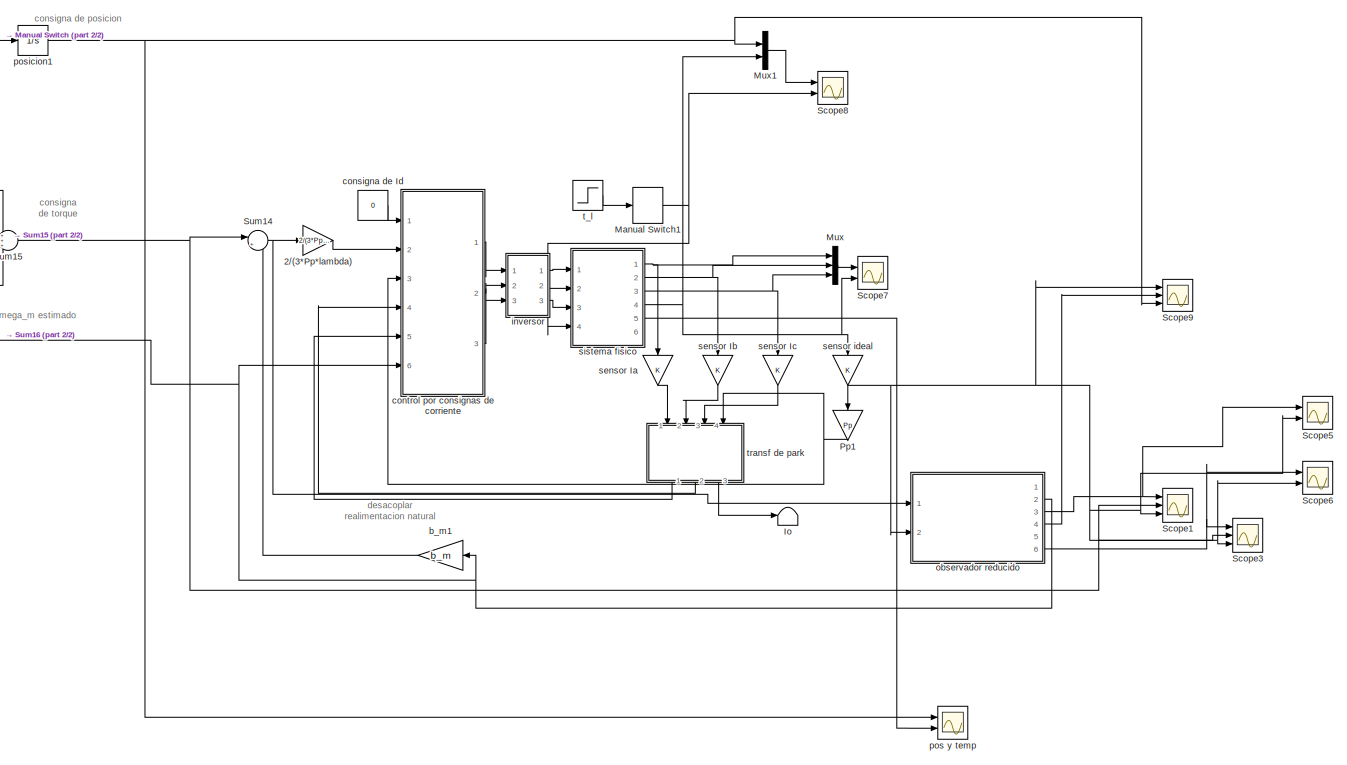
[diagram: root canvas - part 1/2, most of the canvas]
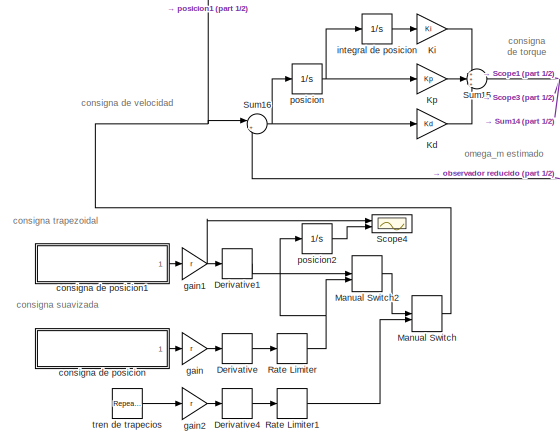
[diagram: root canvas - part 2/2, middle left region]
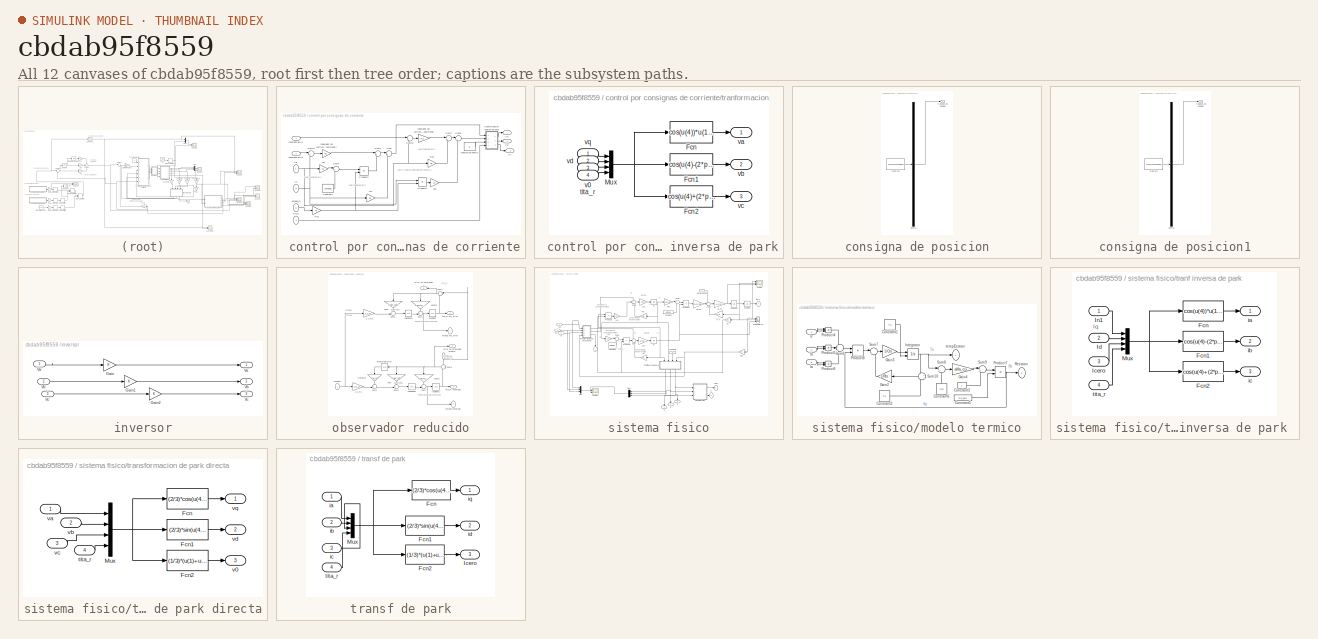
[diagram: thumbnail index - all 12 canvases of the model, root first then tree order]
MODEL slx_cbdab95f8559
KIND model
CONFIG AbsTol = auto
CONFIG EnableMultiTasking = on
CONFIG FixedStep = auto
CONFIG MaxStep = 1e-4
CONFIG MinStep = auto
CONFIG RelTol = 1e-5
CONFIG SampleTimeConstraint = Unconstrained
CONFIG Solver = ode45
CONFIG SolverName = ode45
CONFIG StartTime = 0.0
CONFIG StopTime = 20
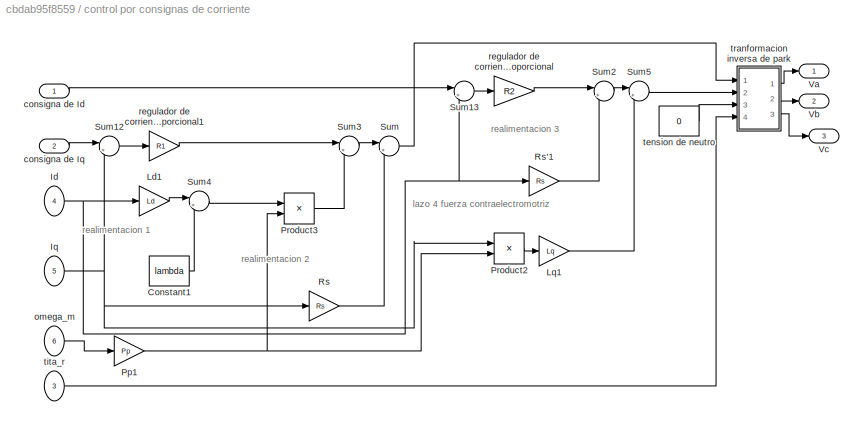
BLOCK [SubSystem]  control por consignas de corriente
  Ports = [6, 3]
  RequestExecContextInheritance = off
  Variant = off
BLOCK [Constant]  control por consignas de corriente/Constant1
  Value = lambda
BLOCK [Inport]  control por consignas de corriente/Id
  IconDisplay = Port number
  Port = 4
BLOCK [Inport]  control por consignas de corriente/Iq
  IconDisplay = Port number
  Port = 5
BLOCK [Gain]  control por consignas de corriente/Ld1
  Gain = Ld
  OutDataTypeStr = Inherit: Inherit via internal rule
  ParamDataTypeStr = Inherit: Inherit via internal rule
  SaturateOnIntegerOverflow = off
BLOCK [Gain]  control por consignas de corriente/Lq1
  Gain = Lq
  OutDataTypeStr = Inherit: Inherit via internal rule
  ParamDataTypeStr = Inherit: Inherit via internal rule
  SaturateOnIntegerOverflow = off
BLOCK [Gain]  control por consignas de corriente/Pp1
  Gain = Pp
  OutDataTypeStr = Inherit: Inherit via internal rule
  ParamDataTypeStr = Inherit: Inherit via internal rule
  SaturateOnIntegerOverflow = off
BLOCK [Product]  control por consignas de corriente/Product2
  InputSameDT = off
  OutDataTypeStr = Inherit: Inherit via internal rule
  Ports = [2, 1]
  SaturateOnIntegerOverflow = off
BLOCK [Product]  control por consignas de corriente/Product3
  InputSameDT = off
  OutDataTypeStr = Inherit: Inherit via internal rule
  Ports = [2, 1]
  SaturateOnIntegerOverflow = off
BLOCK [Gain]  control por consignas de corriente/Rs
  Gain = Rs
  OutDataTypeStr = Inherit: Inherit via internal rule
  ParamDataTypeStr = Inherit: Inherit via internal rule
  SaturateOnIntegerOverflow = off
BLOCK [Gain]  control por consignas de corriente/Rs'1
  Gain = Rs
  OutDataTypeStr = Inherit: Inherit via internal rule
  ParamDataTypeStr = Inherit: Inherit via internal rule
  SaturateOnIntegerOverflow = off
BLOCK [Sum]  control por consignas de corriente/Sum
  IconShape = round
  InputSameDT = off
  Inputs = |++
  OutDataTypeStr = Inherit: Inherit via internal rule
  Ports = [2, 1]
  SaturateOnIntegerOverflow = off
BLOCK [Sum]  control por consignas de corriente/Sum12
  IconShape = round
  InputSameDT = off
  Inputs = |+-
  OutDataTypeStr = Inherit: Inherit via internal rule
  Ports = [2, 1]
  SaturateOnIntegerOverflow = off
BLOCK [Sum]  control por consignas de corriente/Sum13
  IconShape = round
  InputSameDT = off
  Inputs = |+-
  OutDataTypeStr = Inherit: Inherit via internal rule
  Ports = [2, 1]
  SaturateOnIntegerOverflow = off
BLOCK [Sum]  control por consignas de corriente/Sum2
  IconShape = round
  InputSameDT = off
  Inputs = |++
  OutDataTypeStr = Inherit: Inherit via internal rule
  Ports = [2, 1]
  SaturateOnIntegerOverflow = off
BLOCK [Sum]  control por consignas de corriente/Sum3
  IconShape = round
  InputSameDT = off
  Inputs = |++
  OutDataTypeStr = Inherit: Inherit via internal rule
  Ports = [2, 1]
  SaturateOnIntegerOverflow = off
BLOCK [Sum]  control por consignas de corriente/Sum4
  IconShape = round
  InputSameDT = off
  Inputs = |++
  OutDataTypeStr = Inherit: Inherit via internal rule
  Ports = [2, 1]
  SaturateOnIntegerOverflow = off
BLOCK [Sum]  control por consignas de corriente/Sum5
  IconShape = round
  InputSameDT = off
  Inputs = |+-
  OutDataTypeStr = Inherit: Inherit via internal rule
  Ports = [2, 1]
  SaturateOnIntegerOverflow = off
BLOCK [Outport]  control por consignas de corriente/Va
  IconDisplay = Port number
BLOCK [Outport]  control por consignas de corriente/Vb
  IconDisplay = Port number
  Port = 2
BLOCK [Outport]  control por consignas de corriente/Vc
  IconDisplay = Port number
  Port = 3
BLOCK [Inport]  control por consignas de corriente/consigna de Id
  IconDisplay = Port number
BLOCK [Inport]  control por consignas de corriente/consigna de Iq
  IconDisplay = Port number
  Port = 2
BLOCK [Inport]  control por consignas de corriente/omega_m
  IconDisplay = Port number
  Port = 6
BLOCK [Gain]  control por consignas de corriente/regulador de corriente ganacia proporcional
  Gain = R2
  OutDataTypeStr = Inherit: Inherit via internal rule
  ParamDataTypeStr = Inherit: Inherit via internal rule
  SaturateOnIntegerOverflow = off
BLOCK [Gain]  control por consignas de corriente/regulador de corriente ganacia proporcional1
  Gain = R1
  OutDataTypeStr = Inherit: Inherit via internal rule
  ParamDataTypeStr = Inherit: Inherit via internal rule
  SaturateOnIntegerOverflow = off
BLOCK [Constant]  control por consignas de corriente/tension de neutro
  Value = 0
BLOCK [Inport]  control por consignas de corriente/tita_r
  IconDisplay = Port number
  Port = 3
BLOCK [SubSystem]  control por consignas de corriente/tranformacion inversa de park
  Ports = [4, 3]
  RequestExecContextInheritance = off
  Variant = off
BLOCK [Fcn]  control por consignas de corriente/tranformacion inversa de park/Fcn
  Expr = cos(u(4))*u(1)+sin(u(4))*u(2)+u(3)
BLOCK [Fcn]  control por consignas de corriente/tranformacion inversa de park/Fcn1
  Expr = cos(u(4)-(2*pi/3))*u(1)+sin(u(4)-(2*pi/3))*u(2)+u(3)
BLOCK [Fcn]  control por consignas de corriente/tranformacion inversa de park/Fcn2
  Expr = cos(u(4)+(2*pi/3))*u(1)+sin(u(4)+(2*pi/3))*u(2)+u(3)
BLOCK [Mux]  control por consignas de corriente/tranformacion inversa de park/Mux
  DisplayOption = bar
  Ports = [4, 1]
BLOCK [Inport]  control por consignas de corriente/tranformacion inversa de park/tita_r
  IconDisplay = Port number
  Port = 4
BLOCK [Inport]  control por consignas de corriente/tranformacion inversa de park/v0
  IconDisplay = Port number
  Port = 3
BLOCK [Outport]  control por consignas de corriente/tranformacion inversa de park/va
  IconDisplay = Port number
BLOCK [Outport]  control por consignas de corriente/tranformacion inversa de park/vb
  IconDisplay = Port number
  Port = 2
BLOCK [Outport]  control por consignas de corriente/tranformacion inversa de park/vc
  IconDisplay = Port number
  Port = 3
BLOCK [Inport]  control por consignas de corriente/tranformacion inversa de park/vd
  IconDisplay = Port number
  Port = 2
BLOCK [Inport]  control por consignas de corriente/tranformacion inversa de park/vq
  IconDisplay = Port number
BLOCK [Scope]  pos y temp
  NumInputPorts = 2
  Ports = [2]
  ScopeSpecificationString = Simulink.scopes.TimeScopeBlockCfg('CurrentConfiguration', extmgr.ConfigurationSet(extmgr.Configuration('Core','General UI',true),extmgr.Configuration('Core','Source UI',true),extmgr.Configuration('Sources','WiredSimulink',true,'DataLoggingVariableName','ScopeData2'),extmgr.Configuration('Visuals','Time Domain',true,'SerializedDisplays',{struct('MinYLimReal','-246.88788','MaxYLimReal','2221.66551',...<+2269ch>
BLOCK [Gain] 2//(3*Pp*lambda)
  Gain = 2/(3*Pp*lambda)
  OutDataTypeStr = Inherit: Inherit via internal rule
  ParamDataTypeStr = Inherit: Inherit via internal rule
  SaturateOnIntegerOverflow = off
BLOCK [Derivative] Derivative
BLOCK [Derivative] Derivative1
BLOCK [Derivative] Derivative4
BLOCK [Terminator] Io
BLOCK [Gain] Kd
  Gain = Kd
  OutDataTypeStr = Inherit: Inherit via internal rule
  ParamDataTypeStr = Inherit: Inherit via internal rule
  SaturateOnIntegerOverflow = off
BLOCK [Gain] Ki
  Gain = Ki
  OutDataTypeStr = Inherit: Inherit via internal rule
  ParamDataTypeStr = Inherit: Inherit via internal rule
  SaturateOnIntegerOverflow = off
BLOCK [Gain] Kp
  Gain = Kp
  OutDataTypeStr = Inherit: Inherit via internal rule
  ParamDataTypeStr = Inherit: Inherit via internal rule
  SaturateOnIntegerOverflow = off
BLOCK [ManualSwitch] Manual Switch
BLOCK [ManualSwitch] Manual Switch1
BLOCK [ManualSwitch] Manual Switch2
BLOCK [Mux] Mux
  DisplayOption = bar
  Inputs = 3
  Ports = [3, 1]
BLOCK [Mux] Mux1
  DisplayOption = bar
  Inputs = 2
  Ports = [2, 1]
BLOCK [Gain] Pp1
  Gain = Pp
  OutDataTypeStr = Inherit: Inherit via internal rule
  ParamDataTypeStr = Inherit: Inherit via internal rule
  SaturateOnIntegerOverflow = off
BLOCK [RateLimiter] Rate Limiter
  FallingSlewLimit = -16562
  RisingSlewLimit = 16562
  SampleTimeMode = inherited
BLOCK [RateLimiter] Rate Limiter1
  FallingSlewLimit = -16562
  RisingSlewLimit = 16562
  SampleTimeMode = inherited
BLOCK [Scope] Scope1
  NumInputPorts = 3
  Ports = [3]
  ScopeSpecificationString = Simulink.scopes.TimeScopeBlockCfg('CurrentConfiguration', extmgr.ConfigurationSet(extmgr.Configuration('Core','General UI',true),extmgr.Configuration('Core','Source UI',true),extmgr.Configuration('Sources','WiredSimulink',true,'DataLoggingVariableName','ScopeData2'),extmgr.Configuration('Visuals','Time Domain',true,'SerializedDisplays',{struct('MinYLimReal','-0.0002','MaxYLimReal','0.0002','YLabel...<+2771ch>
BLOCK [Scope] Scope3
  NumInputPorts = 3
  Ports = [3]
  ScopeSpecificationString = Simulink.scopes.TimeScopeBlockCfg('CurrentConfiguration', extmgr.ConfigurationSet(extmgr.Configuration('Core','General UI',true),extmgr.Configuration('Core','Source UI',true),extmgr.Configuration('Sources','WiredSimulink',true,'DataLoggingVariableName','ScopeData4'),extmgr.Configuration('Visuals','Time Domain',true,'SerializedDisplays',{struct('MinYLimReal','-0.00027','MaxYLimReal','0.0002','YLabe...<+2971ch>
BLOCK [Scope] Scope4
  NumInputPorts = 2
  Ports = [2]
  ScopeSpecificationString = Simulink.scopes.TimeScopeBlockCfg('CurrentConfiguration', extmgr.ConfigurationSet(extmgr.Configuration('Core','General UI',true),extmgr.Configuration('Core','Source UI',true),extmgr.Configuration('Sources','WiredSimulink',true,'DataLoggingVariableName','ScopeData3'),extmgr.Configuration('Visuals','Time Domain',true,'SerializedDisplays',{struct('MinYLimReal','-40.78035','MaxYLimReal','93.70804','YL...<+1492ch>
BLOCK [Scope] Scope5
  NumInputPorts = 2
  Ports = [2]
  ScopeSpecificationString = Simulink.scopes.TimeScopeBlockCfg('CurrentConfiguration', extmgr.ConfigurationSet(extmgr.Configuration('Core','General UI',true),extmgr.Configuration('Core','Source UI',true),extmgr.Configuration('Sources','WiredSimulink',true,'DataLoggingVariableName','ScopeData6'),extmgr.Configuration('Visuals','Time Domain',true,'SerializedDisplays',{struct('MinYLimReal','-0.01233','MaxYLimReal','0.01234','YLab...<+2057ch>
BLOCK [Scope] Scope6
  NumInputPorts = 2
  Ports = [2]
  ScopeSpecificationString = Simulink.scopes.TimeScopeBlockCfg('CurrentConfiguration', extmgr.ConfigurationSet(extmgr.Configuration('Core','General UI',true),extmgr.Configuration('Core','Source UI',true),extmgr.Configuration('Sources','WiredSimulink',true,'DataLoggingVariableName','ScopeData7'),extmgr.Configuration('Visuals','Time Domain',true,'SerializedDisplays',{struct('MinYLimReal','-0.0114','MaxYLimReal','0.01141','YLabe...<+2055ch>
BLOCK [Scope] Scope7
  NumInputPorts = 2
  Ports = [2]
  ScopeSpecificationString = Simulink.scopes.TimeScopeBlockCfg('CurrentConfiguration', extmgr.ConfigurationSet(extmgr.Configuration('Core','General UI',true),extmgr.Configuration('Core','Source UI',true),extmgr.Configuration('Sources','WiredSimulink',true,'DataLoggingVariableName','ScopeData8'),extmgr.Configuration('Visuals','Time Domain',true,'SerializedDisplays',{struct('MinYLimReal','-38.78101','MaxYLimReal','55.50284','YL...<+2116ch>
BLOCK [Scope] Scope8
  NumInputPorts = 2
  Ports = [2]
  ScopeSpecificationString = Simulink.scopes.TimeScopeBlockCfg('CurrentConfiguration', extmgr.ConfigurationSet(extmgr.Configuration('Core','General UI',true),extmgr.Configuration('Core','Source UI',true),extmgr.Configuration('Sources','WiredSimulink',true,'DataLoggingVariableName','ScopeData1'),extmgr.Configuration('Visuals','Time Domain',true,'SerializedDisplays',{struct('MinYLimReal','-247.06914','MaxYLimReal','2221.87937',...<+2098ch>
BLOCK [Scope] Scope9
  NumInputPorts = 3
  Ports = [3]
  ScopeSpecificationString = Simulink.scopes.TimeScopeBlockCfg('CurrentConfiguration', extmgr.ConfigurationSet(extmgr.Configuration('Core','General UI',true),extmgr.Configuration('Core','Source UI',true),extmgr.Configuration('Sources','WiredSimulink',true,'DataLoggingVariableName','ScopeData4'),extmgr.Configuration('Visuals','Time Domain',true,'SerializedDisplays',{struct('MinYLimReal','-0.000021','MaxYLimReal','0.000041','YL...<+1862ch>
BLOCK [Sum] Sum14
  IconShape = round
  InputSameDT = off
  Inputs = |++
  OutDataTypeStr = Inherit: Inherit via internal rule
  Ports = [2, 1]
  SaturateOnIntegerOverflow = off
BLOCK [Sum] Sum15
  IconShape = round
  InputSameDT = off
  Inputs = +++
  OutDataTypeStr = Inherit: Inherit via internal rule
  Ports = [3, 1]
  SaturateOnIntegerOverflow = off
BLOCK [Sum] Sum16
  IconShape = round
  InputSameDT = off
  Inputs = |+-
  OutDataTypeStr = Inherit: Inherit via internal rule
  Ports = [2, 1]
  SaturateOnIntegerOverflow = off
BLOCK [Gain] b_m1
  Gain = b_m
  OutDataTypeStr = Inherit: Inherit via internal rule
  ParamDataTypeStr = Inherit: Inherit via internal rule
  SaturateOnIntegerOverflow = off
BLOCK [Constant] consigna de Id
  Value = 0
BLOCK [SubSystem] consigna de posicion
  ClipboardFcn = sigbuilder_block('clipboard');
  CloseFcn = sigbuilder_block('close');
  ContinueFcn = sigbuilder_block('continue');
  CopyFcn = sigbuilder_block('copy');
  DeleteFcn = sigbuilder_block('delete');
  LoadFcn = sigbuilder_block('load');
  MaskHideContents = on
  ModelCloseFcn = sigbuilder_block('modelClose');
  NameChangeFcn = sigbuilder_block('namechange');
  OpenFcn = sigbuilder_block('open',[5.58621 27.931 836.69 391.034 ]);
  PauseFcn = sigbuilder_block('pause');
  Ports = [0, 1]
  PreSaveFcn = sigbuilder_block('preSave');
  RequestExecContextInheritance = off
  StartFcn = sigbuilder_block('start');
  StopFcn = sigbuilder_block('stop');
  Tag = STV Subsys
  Variant = off
BLOCK [Demux] consigna de posicion/Demux
  Outputs = 1
  Ports = [1, 1]
  Tag = STV Demux
BLOCK [FromWorkspace] consigna de posicion/FromWs
  SampleTime = 0
  Tag = STV FromWs
  VariableName = tuvar
  ZeroCross = on
BLOCK [Outport] consigna de posicion/trapecio de posicion
  IconDisplay = Port number
  Tag = STV Outport
BLOCK [SubSystem] consigna de posicion1
  ClipboardFcn = sigbuilder_block('clipboard');
  CloseFcn = sigbuilder_block('close');
  ContinueFcn = sigbuilder_block('continue');
  CopyFcn = sigbuilder_block('copy');
  DeleteFcn = sigbuilder_block('delete');
  LoadFcn = sigbuilder_block('load');
  MaskHideContents = on
  ModelCloseFcn = sigbuilder_block('modelClose');
  NameChangeFcn = sigbuilder_block('namechange');
  OpenFcn = sigbuilder_block('open',[5.58621 27.931 836.69 391.034 ]);
  PauseFcn = sigbuilder_block('pause');
  Ports = [0, 1]
  PreSaveFcn = sigbuilder_block('preSave');
  RequestExecContextInheritance = off
  StartFcn = sigbuilder_block('start');
  StopFcn = sigbuilder_block('stop');
  Tag = STV Subsys
  Variant = off
BLOCK [Demux] consigna de posicion1/Demux
  Outputs = 1
  Ports = [1, 1]
  Tag = STV Demux
BLOCK [FromWorkspace] consigna de posicion1/FromWs
  SampleTime = 0
  Tag = STV FromWs
  VariableName = tuvar
  ZeroCross = on
BLOCK [Outport] consigna de posicion1/trapecio de posicion
  IconDisplay = Port number
  Tag = STV Outport
BLOCK [Gain] gain
  Gain = r
  OutDataTypeStr = Inherit: Inherit via internal rule
  ParamDataTypeStr = Inherit: Inherit via internal rule
  SaturateOnIntegerOverflow = off
BLOCK [Gain] gain1
  Gain = r
  OutDataTypeStr = Inherit: Inherit via internal rule
  ParamDataTypeStr = Inherit: Inherit via internal rule
  SaturateOnIntegerOverflow = off
BLOCK [Gain] gain2
  Gain = r
  OutDataTypeStr = Inherit: Inherit via internal rule
  ParamDataTypeStr = Inherit: Inherit via internal rule
  SaturateOnIntegerOverflow = off
BLOCK [Integrator] integral de posicion
  Ports = [1, 1]
BLOCK [SubSystem] inversor
  Ports = [3, 3]
  RequestExecContextInheritance = off
  Variant = off
BLOCK [Gain] inversor/Gain
  OutDataTypeStr = Inherit: Inherit via internal rule
  ParamDataTypeStr = Inherit: Inherit via internal rule
  SaturateOnIntegerOverflow = off
BLOCK [Gain] inversor/Gain1
  OutDataTypeStr = Inherit: Inherit via internal rule
  ParamDataTypeStr = Inherit: Inherit via internal rule
  SaturateOnIntegerOverflow = off
BLOCK [Gain] inversor/Gain2
  OutDataTypeStr = Inherit: Inherit via internal rule
  ParamDataTypeStr = Inherit: Inherit via internal rule
  SaturateOnIntegerOverflow = off
BLOCK [Outport] inversor/Va
  IconDisplay = Port number
BLOCK [Inport] inversor/Va'
  IconDisplay = Port number
BLOCK [Outport] inversor/Vb
  IconDisplay = Port number
  Port = 2
BLOCK [Inport] inversor/Vb'
  IconDisplay = Port number
  Port = 2
BLOCK [Outport] inversor/Vc
  IconDisplay = Port number
  Port = 3
BLOCK [Inport] inversor/Vc'
  IconDisplay = Port number
  Port = 3
BLOCK [SubSystem] observador reducido
  Ports = [2, 6]
  RequestExecContextInheritance = off
  Variant = off
BLOCK [Gain] observador reducido/1//J_m1
  Gain = 1/J_m
  OutDataTypeStr = Inherit: Inherit via internal rule
  ParamDataTypeStr = Inherit: Inherit via internal rule
  SaturateOnIntegerOverflow = off
BLOCK [Gain] observador reducido/1//J_m2
  Gain = 1/J_m
  OutDataTypeStr = Inherit: Inherit via internal rule
  ParamDataTypeStr = Inherit: Inherit via internal rule
  SaturateOnIntegerOverflow = off
BLOCK [Gain] observador reducido/Ketita
  Gain = Ketita_corr
  OutDataTypeStr = Inherit: Inherit via internal rule
  ParamDataTypeStr = Inherit: Inherit via internal rule
  SaturateOnIntegerOverflow = off
BLOCK [Gain] observador reducido/Ketita1
  Gain = Ketita_corr
  OutDataTypeStr = Inherit: Inherit via internal rule
  ParamDataTypeStr = Inherit: Inherit via internal rule
  SaturateOnIntegerOverflow = off
BLOCK [Gain] observador reducido/Kew
  Gain = Kew_corr
  OutDataTypeStr = Inherit: Inherit via internal rule
  ParamDataTypeStr = Inherit: Inherit via internal rule
  SaturateOnIntegerOverflow = off
BLOCK [Gain] observador reducido/Kew1
  Gain = Kew_corr
  OutDataTypeStr = Inherit: Inherit via internal rule
  ParamDataTypeStr = Inherit: Inherit via internal rule
  SaturateOnIntegerOverflow = off
BLOCK [Sum] observador reducido/Sum1
  IconShape = round
  InputSameDT = off
  Inputs = ++|
  OutDataTypeStr = Inherit: Inherit via internal rule
  Ports = [2, 1]
  SaturateOnIntegerOverflow = off
BLOCK [Sum] observador reducido/Sum3
  IconShape = round
  InputSameDT = off
  Inputs = +-
  OutDataTypeStr = Inherit: Inherit via internal rule
  Ports = [2, 1]
  SaturateOnIntegerOverflow = off
BLOCK [Sum] observador reducido/Sum4
  IconShape = round
  InputSameDT = off
  Inputs = ++|
  OutDataTypeStr = Inherit: Inherit via internal rule
  Ports = [2, 1]
  SaturateOnIntegerOverflow = off
BLOCK [Sum] observador reducido/Sum5
  IconShape = round
  InputSameDT = off
  Inputs = ++|
  OutDataTypeStr = Inherit: Inherit via internal rule
  Ports = [2, 1]
  SaturateOnIntegerOverflow = off
BLOCK [Sum] observador reducido/Sum6
  IconShape = round
  InputSameDT = off
  Inputs = +-
  OutDataTypeStr = Inherit: Inherit via internal rule
  Ports = [2, 1]
  SaturateOnIntegerOverflow = off
BLOCK [Sum] observador reducido/Sum7
  IconShape = round
  InputSameDT = off
  Inputs = ++|
  OutDataTypeStr = Inherit: Inherit via internal rule
  Ports = [2, 1]
  SaturateOnIntegerOverflow = off
BLOCK [Sum] observador reducido/Sum8
  IconShape = round
  InputSameDT = off
  Inputs = ++|
  OutDataTypeStr = Inherit: Inherit via internal rule
  Ports = [2, 1]
  SaturateOnIntegerOverflow = off
BLOCK [Inport] observador reducido/consigna
  IconDisplay = Port number
BLOCK [Outport] observador reducido/error de estimacion integral
  IconDisplay = Port number
  Port = 3
BLOCK [Outport] observador reducido/error de estimacion1
  IconDisplay = Port number
  Port = 6
BLOCK [Integrator] observador reducido/integral del error
  Ports = [1, 1]
BLOCK [Gain] observador reducido/k integral
  Gain = Ke_int
  OutDataTypeStr = Inherit: Inherit via internal rule
  ParamDataTypeStr = Inherit: Inherit via internal rule
  SaturateOnIntegerOverflow = off
BLOCK [Outport] observador reducido/omega est_error
  IconDisplay = Port number
  Port = 5
BLOCK [Outport] observador reducido/omega estimado
  IconDisplay = Port number
  Port = 2
BLOCK [Integrator] observador reducido/posicion1
  Ports = [1, 1]
BLOCK [Integrator] observador reducido/posicion2
  Ports = [1, 1]
BLOCK [Inport] observador reducido/tita_m
  IconDisplay = Port number
  Port = 2
BLOCK [Outport] observador reducido/tita_m est_error
  IconDisplay = Port number
  Port = 4
BLOCK [Outport] observador reducido/tita_m estimado
  IconDisplay = Port number
BLOCK [Integrator] observador reducido/velocidad1
  Ports = [1, 1]
BLOCK [Integrator] observador reducido/velocidad2
  Ports = [1, 1]
BLOCK [Integrator] posicion
  Ports = [1, 1]
BLOCK [Integrator] posicion1
  Ports = [1, 1]
BLOCK [Integrator] posicion2
  Ports = [1, 1]
BLOCK [Gain] sensor Ia
  OutDataTypeStr = Inherit: Inherit via internal rule
  ParamDataTypeStr = Inherit: Inherit via internal rule
  SaturateOnIntegerOverflow = off
BLOCK [Gain] sensor Ib
  OutDataTypeStr = Inherit: Inherit via internal rule
  ParamDataTypeStr = Inherit: Inherit via internal rule
  SaturateOnIntegerOverflow = off
BLOCK [Gain] sensor Ic
  OutDataTypeStr = Inherit: Inherit via internal rule
  ParamDataTypeStr = Inherit: Inherit via internal rule
  SaturateOnIntegerOverflow = off
BLOCK [Gain] sensor ideal
  OutDataTypeStr = Inherit: Inherit via internal rule
  ParamDataTypeStr = Inherit: Inherit via internal rule
  SaturateOnIntegerOverflow = off
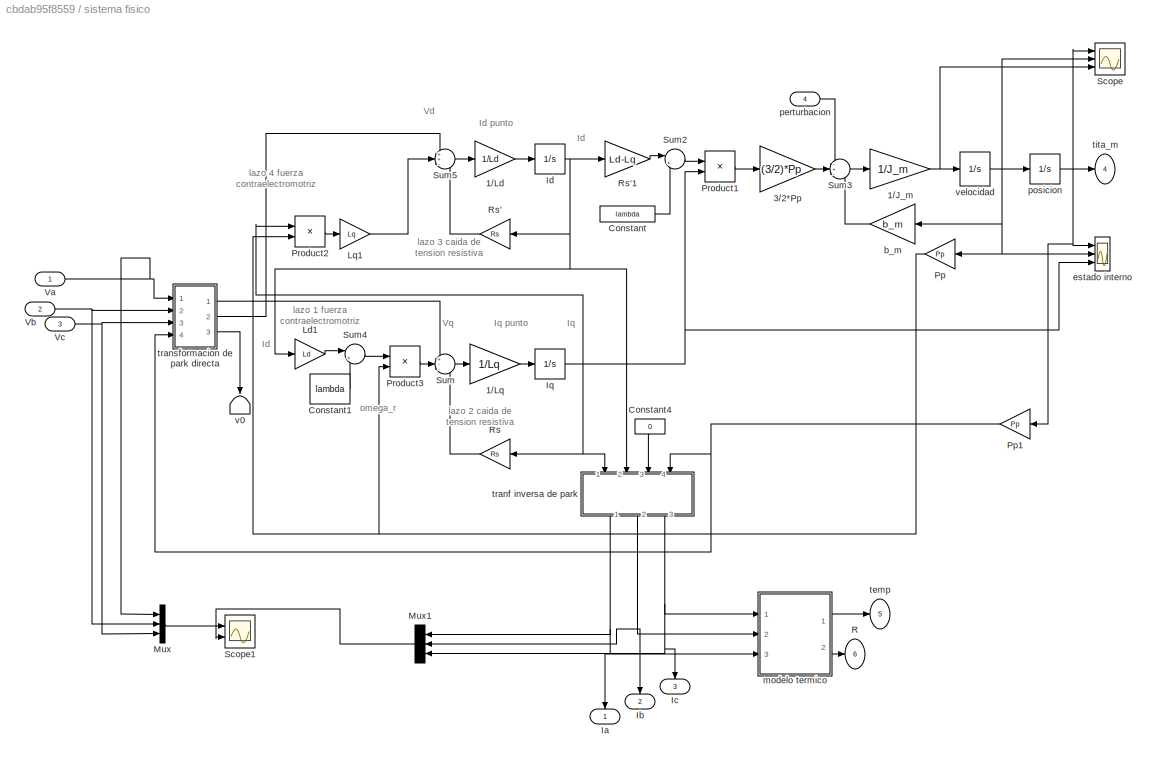
BLOCK [SubSystem] sistema fisico
  Ports = [4, 6]
  RequestExecContextInheritance = off
  Variant = off
BLOCK [Gain] sistema fisico/1//J_m
  Gain = 1/J_m
  OutDataTypeStr = Inherit: Inherit via internal rule
  ParamDataTypeStr = Inherit: Inherit via internal rule
  SaturateOnIntegerOverflow = off
BLOCK [Gain] sistema fisico/1//Ld
  Gain = 1/Ld
  OutDataTypeStr = Inherit: Inherit via internal rule
  ParamDataTypeStr = Inherit: Inherit via internal rule
  SaturateOnIntegerOverflow = off
BLOCK [Gain] sistema fisico/1//Lq
  Gain = 1/Lq
  OutDataTypeStr = Inherit: Inherit via internal rule
  ParamDataTypeStr = Inherit: Inherit via internal rule
  SaturateOnIntegerOverflow = off
BLOCK [Gain] sistema fisico/3//2*Pp
  Gain = (3/2)*Pp
  OutDataTypeStr = Inherit: Inherit via internal rule
  ParamDataTypeStr = Inherit: Inherit via internal rule
  SaturateOnIntegerOverflow = off
BLOCK [Constant] sistema fisico/Constant
  Value = lambda
BLOCK [Constant] sistema fisico/Constant1
  Value = lambda
BLOCK [Constant] sistema fisico/Constant4
  Value = 0
BLOCK [Outport] sistema fisico/Ia
  IconDisplay = Port number
BLOCK [Outport] sistema fisico/Ib
  IconDisplay = Port number
  Port = 2
BLOCK [Outport] sistema fisico/Ic
  IconDisplay = Port number
  Port = 3
BLOCK [Integrator] sistema fisico/Id
  Ports = [1, 1]
BLOCK [Integrator] sistema fisico/Iq
  Ports = [1, 1]
BLOCK [Gain] sistema fisico/Ld1
  Gain = Ld
  OutDataTypeStr = Inherit: Inherit via internal rule
  ParamDataTypeStr = Inherit: Inherit via internal rule
  SaturateOnIntegerOverflow = off
BLOCK [Gain] sistema fisico/Lq1
  Gain = Lq
  OutDataTypeStr = Inherit: Inherit via internal rule
  ParamDataTypeStr = Inherit: Inherit via internal rule
  SaturateOnIntegerOverflow = off
BLOCK [Mux] sistema fisico/Mux
  DisplayOption = bar
  Inputs = 3
  Ports = [3, 1]
BLOCK [Mux] sistema fisico/Mux1
  DisplayOption = bar
  Inputs = 3
  Ports = [3, 1]
BLOCK [Gain] sistema fisico/Pp
  Gain = Pp
  OutDataTypeStr = Inherit: Inherit via internal rule
  ParamDataTypeStr = Inherit: Inherit via internal rule
  SaturateOnIntegerOverflow = off
BLOCK [Gain] sistema fisico/Pp1
  Gain = Pp
  OutDataTypeStr = Inherit: Inherit via internal rule
  ParamDataTypeStr = Inherit: Inherit via internal rule
  SaturateOnIntegerOverflow = off
BLOCK [Product] sistema fisico/Product1
  InputSameDT = off
  OutDataTypeStr = Inherit: Inherit via internal rule
  Ports = [2, 1]
  SaturateOnIntegerOverflow = off
BLOCK [Product] sistema fisico/Product2
  InputSameDT = off
  OutDataTypeStr = Inherit: Inherit via internal rule
  Ports = [2, 1]
  SaturateOnIntegerOverflow = off
BLOCK [Product] sistema fisico/Product3
  InputSameDT = off
  OutDataTypeStr = Inherit: Inherit via internal rule
  Ports = [2, 1]
  SaturateOnIntegerOverflow = off
BLOCK [Outport] sistema fisico/R
  IconDisplay = Port number
  Port = 6
BLOCK [Gain] sistema fisico/Rs
  Gain = Rs
  OutDataTypeStr = Inherit: Inherit via internal rule
  ParamDataTypeStr = Inherit: Inherit via internal rule
  SaturateOnIntegerOverflow = off
BLOCK [Gain] sistema fisico/Rs'
  Gain = Rs
  OutDataTypeStr = Inherit: Inherit via internal rule
  ParamDataTypeStr = Inherit: Inherit via internal rule
  SaturateOnIntegerOverflow = off
BLOCK [Gain] sistema fisico/Rs'1
  Gain = Ld-Lq
  OutDataTypeStr = Inherit: Inherit via internal rule
  ParamDataTypeStr = Inherit: Inherit via internal rule
  SaturateOnIntegerOverflow = off
BLOCK [Scope] sistema fisico/Scope
  NumInputPorts = 3
  Ports = [3]
  ScopeSpecificationString = Simulink.scopes.TimeScopeBlockCfg('CurrentConfiguration', extmgr.ConfigurationSet(extmgr.Configuration('Core','General UI',true),extmgr.Configuration('Core','Source UI',true),extmgr.Configuration('Sources','WiredSimulink',true,'DataLoggingVariableName','ScopeData5'),extmgr.Configuration('Visuals','Time Domain',true,'SerializedDisplays',{struct('MinYLimReal','-6.97978','MaxYLimReal','62.81804','YLa...<+2768ch>
BLOCK [Scope] sistema fisico/Scope1
  NumInputPorts = 2
  Ports = [2]
  ScopeSpecificationString = Simulink.scopes.TimeScopeBlockCfg('CurrentConfiguration', extmgr.ConfigurationSet(extmgr.Configuration('Core','General UI',true),extmgr.Configuration('Core','Source UI',true),extmgr.Configuration('Sources','WiredSimulink',true,'DataLoggingVariableName','ScopeData6'),extmgr.Configuration('Visuals','Time Domain',true,'SerializedDisplays',{struct('MinYLimReal','-1299.24882','MaxYLimReal','2244.15705'...<+2152ch>
BLOCK [Sum] sistema fisico/Sum
  IconShape = round
  InputSameDT = off
  Inputs = +--
  OutDataTypeStr = Inherit: Inherit via internal rule
  Ports = [3, 1]
  SaturateOnIntegerOverflow = off
BLOCK [Sum] sistema fisico/Sum2
  IconShape = round
  InputSameDT = off
  Inputs = |++
  OutDataTypeStr = Inherit: Inherit via internal rule
  Ports = [2, 1]
  SaturateOnIntegerOverflow = off
BLOCK [Sum] sistema fisico/Sum3
  IconShape = round
  InputSameDT = off
  Inputs = -+-
  OutDataTypeStr = Inherit: Inherit via internal rule
  Ports = [3, 1]
  SaturateOnIntegerOverflow = off
BLOCK [Sum] sistema fisico/Sum4
  IconShape = round
  InputSameDT = off
  Inputs = |++
  OutDataTypeStr = Inherit: Inherit via internal rule
  Ports = [2, 1]
  SaturateOnIntegerOverflow = off
BLOCK [Sum] sistema fisico/Sum5
  IconShape = round
  InputSameDT = off
  Inputs = ++-
  OutDataTypeStr = Inherit: Inherit via internal rule
  Ports = [3, 1]
  SaturateOnIntegerOverflow = off
BLOCK [Inport] sistema fisico/Va
  IconDisplay = Port number
BLOCK [Inport] sistema fisico/Vb
  IconDisplay = Port number
  Port = 2
BLOCK [Inport] sistema fisico/Vc
  IconDisplay = Port number
  Port = 3
BLOCK [Gain] sistema fisico/b_m
  Gain = b_m
  OutDataTypeStr = Inherit: Inherit via internal rule
  ParamDataTypeStr = Inherit: Inherit via internal rule
  SaturateOnIntegerOverflow = off
BLOCK [Scope] sistema fisico/estado interno
  NumInputPorts = 3
  Ports = [3]
  ScopeSpecificationString = Simulink.scopes.TimeScopeBlockCfg('CurrentConfiguration', extmgr.ConfigurationSet(extmgr.Configuration('Core','General UI',true,'FigureColor',[0.831372549019608 0.815686274509804 0.784313725490196]),extmgr.Configuration('Core','Source UI',true),extmgr.Configuration('Sources','WiredSimulink',true,'DataLoggingSaveFormat','StructureWithTime','DataLoggingMaxPoints','8000','DataLoggingDecimation','1','...<+5600ch>
BLOCK [SubSystem] sistema fisico/modelo termico
  Ports = [3, 2]
  RequestExecContextInheritance = off
  Variant = off
BLOCK [Constant] sistema fisico/modelo termico/Constant1
  Value = Ta
BLOCK [Constant] sistema fisico/modelo termico/Constant2
  Value = Ta
BLOCK [Constant] sistema fisico/modelo termico/Constant3
BLOCK [Constant] sistema fisico/modelo termico/Constant5
  Value = Rs_cero
BLOCK [Constant] sistema fisico/modelo termico/Constant6
  Value = Ts0
BLOCK [Gain] sistema fisico/modelo termico/Gain2
  Gain = 1/Rts
  OutDataTypeStr = Inherit: Inherit via internal rule
  ParamDataTypeStr = Inherit: Inherit via internal rule
  SaturateOnIntegerOverflow = off
BLOCK [Gain] sistema fisico/modelo termico/Gain3
  Gain = 1/Cts
  OutDataTypeStr = Inherit: Inherit via internal rule
  ParamDataTypeStr = Inherit: Inherit via internal rule
  SaturateOnIntegerOverflow = off
BLOCK [Gain] sistema fisico/modelo termico/Gain4
  Gain = alfa_cu
  OutDataTypeStr = Inherit: Inherit via internal rule
  ParamDataTypeStr = Inherit: Inherit via internal rule
  SaturateOnIntegerOverflow = off
BLOCK [Inport] sistema fisico/modelo termico/Ia
  IconDisplay = Port number
  Port = 3
BLOCK [Inport] sistema fisico/modelo termico/Ib
  IconDisplay = Port number
  Port = 2
BLOCK [Inport] sistema fisico/modelo termico/Ic
  IconDisplay = Port number
BLOCK [Integrator] sistema fisico/modelo termico/Integrator
  InitialConditionSource = external
  Ports = [2, 1]
BLOCK [Product] sistema fisico/modelo termico/Product4
  InputSameDT = off
  OutDataTypeStr = Inherit: Inherit via internal rule
  Ports = [2, 1]
  SaturateOnIntegerOverflow = off
BLOCK [Product] sistema fisico/modelo termico/Product5
  InputSameDT = off
  OutDataTypeStr = Inherit: Inherit via internal rule
  Ports = [2, 1]
  SaturateOnIntegerOverflow = off
BLOCK [Product] sistema fisico/modelo termico/Product6
  InputSameDT = off
  OutDataTypeStr = Inherit: Inherit via internal rule
  Ports = [2, 1]
  SaturateOnIntegerOverflow = off
BLOCK [Product] sistema fisico/modelo termico/Product7
  InputSameDT = off
  OutDataTypeStr = Inherit: Inherit via internal rule
  Ports = [2, 1]
  SaturateOnIntegerOverflow = off
BLOCK [Product] sistema fisico/modelo termico/Product8
  InputSameDT = off
  OutDataTypeStr = Inherit: Inherit via internal rule
  Ports = [2, 1]
  SaturateOnIntegerOverflow = off
BLOCK [Outport] sistema fisico/modelo termico/Restator
  IconDisplay = Port number
  Port = 2
BLOCK [Sum] sistema fisico/modelo termico/Sum10
  IconShape = round
  InputSameDT = off
  Inputs = +-
  OutDataTypeStr = Inherit: Inherit via internal rule
  Ports = [2, 1]
  SaturateOnIntegerOverflow = off
BLOCK [Sum] sistema fisico/modelo termico/Sum6
  IconShape = round
  InputSameDT = off
  Inputs = +++
  OutDataTypeStr = Inherit: Inherit via internal rule
  Ports = [3, 1]
  SaturateOnIntegerOverflow = off
BLOCK [Sum] sistema fisico/modelo termico/Sum7
  IconShape = round
  InputSameDT = off
  Inputs = |+-
  OutDataTypeStr = Inherit: Inherit via internal rule
  Ports = [2, 1]
  SaturateOnIntegerOverflow = off
BLOCK [Sum] sistema fisico/modelo termico/Sum8
  IconShape = round
  InputSameDT = off
  Inputs = |+-
  OutDataTypeStr = Inherit: Inherit via internal rule
  Ports = [2, 1]
  SaturateOnIntegerOverflow = off
BLOCK [Sum] sistema fisico/modelo termico/Sum9
  IconShape = round
  InputSameDT = off
  Inputs = |++
  OutDataTypeStr = Inherit: Inherit via internal rule
  Ports = [2, 1]
  SaturateOnIntegerOverflow = off
BLOCK [Outport] sistema fisico/modelo termico/tempEstator
  IconDisplay = Port number
BLOCK [Inport] sistema fisico/perturbacion
  IconDisplay = Port number
  Port = 4
BLOCK [Integrator] sistema fisico/posicion
  Ports = [1, 1]
BLOCK [Outport] sistema fisico/temp
  IconDisplay = Port number
  Port = 5
BLOCK [Outport] sistema fisico/tita_m
  IconDisplay = Port number
  Port = 4
BLOCK [SubSystem] sistema fisico/tranf inversa de park 
  Ports = [4, 3]
  RequestExecContextInheritance = off
  Variant = off
BLOCK [Fcn] sistema fisico/tranf inversa de park /Fcn
  Expr = cos(u(4))*u(1)+sin(u(4))*u(2)+u(3)
BLOCK [Fcn] sistema fisico/tranf inversa de park /Fcn1
  Expr = cos(u(4)-(2*pi/3))*u(1)+sin(u(4)-(2*pi/3))*u(2)+u(3)
BLOCK [Fcn] sistema fisico/tranf inversa de park /Fcn2
  Expr = cos(u(4)+(2*pi/3))*u(1)+sin(u(4)+(2*pi/3))*u(2)+u(3)
BLOCK [Inport] sistema fisico/tranf inversa de park /Icero
  IconDisplay = Port number
  Port = 3
BLOCK [Inport] sistema fisico/tranf inversa de park /Id
  IconDisplay = Port number
  Port = 2
BLOCK [Inport] sistema fisico/tranf inversa de park /In1
  IconDisplay = Port number
BLOCK [Mux] sistema fisico/tranf inversa de park /Mux
  DisplayOption = bar
  Ports = [4, 1]
BLOCK [Outport] sistema fisico/tranf inversa de park /ia
  IconDisplay = Port number
BLOCK [Outport] sistema fisico/tranf inversa de park /ib
  IconDisplay = Port number
  Port = 2
BLOCK [Outport] sistema fisico/tranf inversa de park /ic
  IconDisplay = Port number
  Port = 3
BLOCK [Inport] sistema fisico/tranf inversa de park /tita_r
  IconDisplay = Port number
  Port = 4
BLOCK [SubSystem] sistema fisico/transformacion de park directa
  Ports = [4, 3]
  RequestExecContextInheritance = off
  Variant = off
BLOCK [Fcn] sistema fisico/transformacion de park directa/Fcn
  Expr = (2/3)*cos(u(4))*u(1)+(2/3)*cos(u(4)-(2*pi/3))*u(2)+(2/3)*cos(u(4)+(2*pi/3))*u(3)
BLOCK [Fcn] sistema fisico/transformacion de park directa/Fcn1
  Expr = (2/3)*sin(u(4))*u(1)+(2/3)*sin(u(4)-(2*pi/3))*u(2)+(2/3)*sin(u(4)+(2*pi/3))*u(3)
BLOCK [Fcn] sistema fisico/transformacion de park directa/Fcn2
  Expr = (1/3)*(u(1)+u(2)+u(3))
BLOCK [Mux] sistema fisico/transformacion de park directa/Mux
  DisplayOption = bar
  Ports = [4, 1]
BLOCK [Inport] sistema fisico/transformacion de park directa/tita_r
  IconDisplay = Port number
  Port = 4
BLOCK [Outport] sistema fisico/transformacion de park directa/v0
  IconDisplay = Port number
  Port = 3
BLOCK [Inport] sistema fisico/transformacion de park directa/va
  IconDisplay = Port number
BLOCK [Inport] sistema fisico/transformacion de park directa/vb
  IconDisplay = Port number
  Port = 2
BLOCK [Inport] sistema fisico/transformacion de park directa/vc
  IconDisplay = Port number
  Port = 3
BLOCK [Outport] sistema fisico/transformacion de park directa/vd
  IconDisplay = Port number
  Port = 2
BLOCK [Outport] sistema fisico/transformacion de park directa/vq
  IconDisplay = Port number
BLOCK [Terminator] sistema fisico/v0
BLOCK [Integrator] sistema fisico/velocidad
  ContinuousStateAttributes = 'velocidad'
  Ports = [1, 1]
BLOCK [Step] t_l
  After = T_l
  SampleTime = 0
  Time = 1.1
BLOCK [SubSystem] transf de park
  Ports = [4, 3]
  RequestExecContextInheritance = off
  Variant = off
BLOCK [Fcn] transf de park/Fcn
  Expr = (2/3)*cos(u(4))*u(1)+(2/3)*cos(u(4)-(2*pi/3))*u(2)+(2/3)*cos(u(4)+(2*pi/3))*u(3)
BLOCK [Fcn] transf de park/Fcn1
  Expr = (2/3)*sin(u(4))*u(1)+(2/3)*sin(u(4)-(2*pi/3))*u(2)+(2/3)*sin(u(4)+(2*pi/3))*u(3)
BLOCK [Fcn] transf de park/Fcn2
  Expr = (1/3)*(u(1)+u(2)+u(3))
BLOCK [Outport] transf de park/Icero
  IconDisplay = Port number
  Port = 3
BLOCK [Mux] transf de park/Mux
  DisplayOption = bar
  Ports = [4, 1]
BLOCK [Inport] transf de park/ia
  IconDisplay = Port number
BLOCK [Inport] transf de park/ib
  IconDisplay = Port number
  Port = 2
BLOCK [Inport] transf de park/ic
  IconDisplay = Port number
  Port = 3
BLOCK [Outport] transf de park/id
  IconDisplay = Port number
  Port = 2
BLOCK [Outport] transf de park/iq
  IconDisplay = Port number
BLOCK [Inport] transf de park/tita_r
  IconDisplay = Port number
  Port = 4
BLOCK [Reference] tren de trapecios  REF=simulink/Sources/Repeating
Sequence
  Ports = [0, 1]
  SourceBlock = simulink/Sources/Repeating\nSequence
  SourceProductBaseCode = SL
  SourceProductName = Simulink
  SourceType = Repeating table
ANNOTATION (root): consigna de torque
ANNOTATION (root): consigna de posicion
ANNOTATION (root): consigna de velocidad
ANNOTATION (root): consigna suavizada
ANNOTATION (root): consigna trapezoidal
ANNOTATION (root): desacoplar realimentacion natural
ANNOTATION (root): omega_m estimado
ANNOTATION  control por consignas de corriente: lazo 4 fuerza contraelectromotriz
ANNOTATION  control por consignas de corriente: realimentacion 1
ANNOTATION  control por consignas de corriente: realimentacion 2
ANNOTATION  control por consignas de corriente: realimentacion 3
ANNOTATION observador reducido: Yestimado=THETAestimado
ANNOTATION observador reducido: aceleracion
ANNOTATION observador reducido: consigna torque
ANNOTATION observador reducido: tita_m
ANNOTATION observador reducido: y=theta_m
ANNOTATION sistema fisico: Id
ANNOTATION sistema fisico: Id punto
ANNOTATION sistema fisico: Iq
ANNOTATION sistema fisico: Iq punto
ANNOTATION sistema fisico: Vd
ANNOTATION sistema fisico: Vq
ANNOTATION sistema fisico: lazo 1 fuerza contraelectromotriz
ANNOTATION sistema fisico: lazo 2 caida de tension resistiva
ANNOTATION sistema fisico: lazo 3 caida de tension resistiva
ANNOTATION sistema fisico: lazo 4 fuerza contraelectromotriz
ANNOTATION sistema fisico: omega_r
ANNOTATION sistema fisico/modelo termico: Rs
ANNOTATION sistema fisico/modelo termico: Ts
ANNOTATION sistema fisico/tranf inversa de park : Iq
LINE  control por consignas de corriente/Constant1:1 ->  control por consignas de corriente/Sum4:2
NET  control por consignas de corriente/Id:1 ->  control por consignas de corriente/Ld1:1,  control por consignas de corriente/Rs'1:1,  control por consignas de corriente/Sum13:2
NET  control por consignas de corriente/Iq:1 ->  control por consignas de corriente/Product2:1,  control por consignas de corriente/Rs:1,  control por consignas de corriente/Sum12:2
LINE  control por consignas de corriente/Ld1:1 ->  control por consignas de corriente/Sum4:1
LINE  control por consignas de corriente/Lq1:1 ->  control por consignas de corriente/Sum5:2
NET  control por consignas de corriente/Pp1:1 ->  control por consignas de corriente/Product2:2,  control por consignas de corriente/Product3:2
LINE  control por consignas de corriente/Product2:1 ->  control por consignas de corriente/Lq1:1
LINE  control por consignas de corriente/Product3:1 ->  control por consignas de corriente/Sum3:2
LINE  control por consignas de corriente/Rs'1:1 ->  control por consignas de corriente/Sum2:2
LINE  control por consignas de corriente/Rs:1 ->  control por consignas de corriente/Sum:2
LINE  control por consignas de corriente/Sum12:1 ->  control por consignas de corriente/regulador de corriente ganacia proporcional1:1
LINE  control por consignas de corriente/Sum13:1 ->  control por consignas de corriente/regulador de corriente ganacia proporcional:1
LINE  control por consignas de corriente/Sum2:1 ->  control por consignas de corriente/Sum5:1
LINE  control por consignas de corriente/Sum3:1 ->  control por consignas de corriente/Sum:1
LINE  control por consignas de corriente/Sum4:1 ->  control por consignas de corriente/Product3:1
LINE  control por consignas de corriente/Sum5:1 ->  control por consignas de corriente/tranformacion inversa de park:2
LINE  control por consignas de corriente/Sum:1 ->  control por consignas de corriente/tranformacion inversa de park:1
LINE  control por consignas de corriente/consigna de Id:1 ->  control por consignas de corriente/Sum13:1
LINE  control por consignas de corriente/consigna de Iq:1 ->  control por consignas de corriente/Sum12:1
LINE  control por consignas de corriente/omega_m:1 ->  control por consignas de corriente/Pp1:1
LINE  control por consignas de corriente/regulador de corriente ganacia proporcional1:1 ->  control por consignas de corriente/Sum3:1
LINE  control por consignas de corriente/regulador de corriente ganacia proporcional:1 ->  control por consignas de corriente/Sum2:1
LINE  control por consignas de corriente/tension de neutro:1 ->  control por consignas de corriente/tranformacion inversa de park:3
LINE  control por consignas de corriente/tita_r:1 ->  control por consignas de corriente/tranformacion inversa de park:4
LINE  control por consignas de corriente/tranformacion inversa de park/Fcn1:1 ->  control por consignas de corriente/tranformacion inversa de park/vb:1
LINE  control por consignas de corriente/tranformacion inversa de park/Fcn2:1 ->  control por consignas de corriente/tranformacion inversa de park/vc:1
LINE  control por consignas de corriente/tranformacion inversa de park/Fcn:1 ->  control por consignas de corriente/tranformacion inversa de park/va:1
NET  control por consignas de corriente/tranformacion inversa de park/Mux:1 ->  control por consignas de corriente/tranformacion inversa de park/Fcn1:1,  control por consignas de corriente/tranformacion inversa de park/Fcn2:1,  control por consignas de corriente/tranformacion inversa de park/Fcn:1
LINE  control por consignas de corriente/tranformacion inversa de park/tita_r:1 ->  control por consignas de corriente/tranformacion inversa de park/Mux:4
LINE  control por consignas de corriente/tranformacion inversa de park/v0:1 ->  control por consignas de corriente/tranformacion inversa de park/Mux:3
LINE  control por consignas de corriente/tranformacion inversa de park/vd:1 ->  control por consignas de corriente/tranformacion inversa de park/Mux:2
LINE  control por consignas de corriente/tranformacion inversa de park/vq:1 ->  control por consignas de corriente/tranformacion inversa de park/Mux:1
LINE  control por consignas de corriente/tranformacion inversa de park:1 ->  control por consignas de corriente/Va:1
LINE  control por consignas de corriente/tranformacion inversa de park:2 ->  control por consignas de corriente/Vb:1
LINE  control por consignas de corriente/tranformacion inversa de park:3 ->  control por consignas de corriente/Vc:1
LINE  control por consignas de corriente:1 -> inversor:1
LINE  control por consignas de corriente:2 -> inversor:2
LINE  control por consignas de corriente:3 -> inversor:3
LINE 2//(3*Pp*lambda):1 ->  control por consignas de corriente:2
LINE Derivative1:1 -> Manual Switch2:1
LINE Derivative4:1 -> Rate Limiter1:1
LINE Derivative:1 -> Rate Limiter:1
LINE Kd:1 -> Sum15:3
LINE Ki:1 -> Sum15:1
LINE Kp:1 -> Sum15:2
NET Manual Switch1:1 -> Scope8:2, sistema fisico:4
LINE Manual Switch2:1 -> Manual Switch:1
NET Manual Switch:1 -> Sum16:1, posicion1:1
LINE Mux1:1 -> Scope8:1
LINE Mux:1 -> Scope7:1
NET Pp1:1 ->  control por consignas de corriente:3, transf de park:4
LINE Rate Limiter1:1 -> Manual Switch:2
NET Rate Limiter:1 -> Manual Switch2:2, posicion2:1
NET Sum14:1 -> 2//(3*Pp*lambda):1, observador reducido:1
NET Sum15:1 -> Scope1:2, Scope3:2, Sum14:1
NET Sum16:1 -> Kd:1, posicion:1
LINE b_m1:1 -> Sum14:2
LINE consigna de Id:1 ->  control por consignas de corriente:1
LINE consigna de posicion1:1 -> gain1:1
LINE consigna de posicion:1 -> gain:1
NET gain1:1 -> Derivative1:1, Scope4:1
LINE gain2:1 -> Derivative4:1
LINE gain:1 -> Derivative:1
LINE integral de posicion:1 -> Ki:1
LINE inversor/Gain1:1 -> inversor/Vb:1
LINE inversor/Gain2:1 -> inversor/Vc:1
LINE inversor/Gain:1 -> inversor/Va:1
LINE inversor/Va':1 -> inversor/Gain:1
LINE inversor/Vb':1 -> inversor/Gain1:1
LINE inversor/Vc':1 -> inversor/Gain2:1
LINE inversor:1 -> sistema fisico:1
LINE inversor:2 -> sistema fisico:2
LINE inversor:3 -> sistema fisico:3
LINE observador reducido/1//J_m1:1 -> observador reducido/Sum1:2
LINE observador reducido/1//J_m2:1 -> observador reducido/Sum5:2
LINE observador reducido/Ketita1:1 -> observador reducido/Sum4:1
LINE observador reducido/Ketita:1 -> observador reducido/Sum7:1
LINE observador reducido/Kew1:1 -> observador reducido/Sum5:1
LINE observador reducido/Kew:1 -> observador reducido/Sum8:1
LINE observador reducido/Sum1:1 -> observador reducido/Sum8:2
NET observador reducido/Sum3:1 -> observador reducido/Ketita1:1, observador reducido/Kew1:1, observador reducido/error de estimacion1:1
NET observador reducido/Sum4:1 -> observador reducido/omega est_error:1, observador reducido/posicion2:1
LINE observador reducido/Sum5:1 -> observador reducido/velocidad1:1
NET observador reducido/Sum6:1 -> observador reducido/Ketita:1, observador reducido/Kew:1, observador reducido/error de estimacion integral:1, observador reducido/integral del error:1
NET observador reducido/Sum7:1 -> observador reducido/omega estimado:1, observador reducido/posicion1:1
LINE observador reducido/Sum8:1 -> observador reducido/velocidad2:1
NET observador reducido/consigna:1 -> observador reducido/1//J_m1:1, observador reducido/1//J_m2:1
LINE observador reducido/integral del error:1 -> observador reducido/k integral:1
LINE observador reducido/k integral:1 -> observador reducido/Sum1:1
NET observador reducido/posicion1:1 -> observador reducido/Sum6:2, observador reducido/tita_m estimado:1
NET observador reducido/posicion2:1 -> observador reducido/Sum3:2, observador reducido/tita_m est_error:1
NET observador reducido/tita_m:1 -> observador reducido/Sum3:1, observador reducido/Sum6:1
LINE observador reducido/velocidad1:1 -> observador reducido/Sum4:2
LINE observador reducido/velocidad2:1 -> observador reducido/Sum7:2
NET observador reducido:2 ->  control por consignas de corriente:6, Sum16:2, b_m1:1
NET observador reducido:3 -> Scope1:1, Scope5:1
LINE observador reducido:4 -> Scope9:2
NET observador reducido:6 -> Scope3:1, Scope6:1
NET posicion1:1 ->  pos y temp:1, Mux1:1, Scope9:3
LINE posicion2:1 -> Scope4:2
NET posicion:1 -> Kp:1, integral de posicion:1
LINE sensor Ia:1 -> transf de park:1
LINE sensor Ib:1 -> transf de park:2
LINE sensor Ic:1 -> transf de park:3
NET sensor ideal:1 -> Pp1:1, Scope1:3, Scope3:3, Scope5:2, Scope6:2, Scope9:1, observador reducido:2
NET sistema fisico/1//J_m:1 -> sistema fisico/Scope:3, sistema fisico/velocidad:1
LINE sistema fisico/1//Ld:1 -> sistema fisico/Id:1
LINE sistema fisico/1//Lq:1 -> sistema fisico/Iq:1
LINE sistema fisico/3//2*Pp:1 -> sistema fisico/Sum3:2
LINE sistema fisico/Constant1:1 -> sistema fisico/Sum4:2
LINE sistema fisico/Constant4:1 -> sistema fisico/tranf inversa de park :3
LINE sistema fisico/Constant:1 -> sistema fisico/Sum2:2
NET sistema fisico/Id:1 -> sistema fisico/Ld1:1, sistema fisico/Rs'1:1, sistema fisico/Rs':1, sistema fisico/tranf inversa de park :2
NET sistema fisico/Iq:1 -> sistema fisico/Product1:2, sistema fisico/Product2:1, sistema fisico/Rs:1, sistema fisico/estado interno:3, sistema fisico/tranf inversa de park :1
LINE sistema fisico/Ld1:1 -> sistema fisico/Sum4:1
LINE sistema fisico/Lq1:1 -> sistema fisico/Sum5:2
LINE sistema fisico/Mux1:1 -> sistema fisico/Scope1:2
LINE sistema fisico/Mux:1 -> sistema fisico/Scope1:1
NET sistema fisico/Pp1:1 -> sistema fisico/tranf inversa de park :4, sistema fisico/transformacion de park directa:4
NET sistema fisico/Pp:1 -> sistema fisico/Product2:2, sistema fisico/Product3:2
LINE sistema fisico/Product1:1 -> sistema fisico/3//2*Pp:1
LINE sistema fisico/Product2:1 -> sistema fisico/Lq1:1
LINE sistema fisico/Product3:1 -> sistema fisico/Sum:2
LINE sistema fisico/Rs'1:1 -> sistema fisico/Sum2:1
LINE sistema fisico/Rs':1 -> sistema fisico/Sum5:3
LINE sistema fisico/Rs:1 -> sistema fisico/Sum:3
LINE sistema fisico/Sum2:1 -> sistema fisico/Product1:1
LINE sistema fisico/Sum3:1 -> sistema fisico/1//J_m:1
LINE sistema fisico/Sum4:1 -> sistema fisico/Product3:1
LINE sistema fisico/Sum5:1 -> sistema fisico/1//Ld:1
LINE sistema fisico/Sum:1 -> sistema fisico/1//Lq:1
NET sistema fisico/Va:1 -> sistema fisico/Mux:1, sistema fisico/transformacion de park directa:1
NET sistema fisico/Vb:1 -> sistema fisico/Mux:2, sistema fisico/transformacion de park directa:2
NET sistema fisico/Vc:1 -> sistema fisico/Mux:3, sistema fisico/transformacion de park directa:3
LINE sistema fisico/b_m:1 -> sistema fisico/Sum3:3
LINE sistema fisico/modelo termico/Constant1:1 -> sistema fisico/modelo termico/Integrator:2
LINE sistema fisico/modelo termico/Constant2:1 -> sistema fisico/modelo termico/Sum10:2
LINE sistema fisico/modelo termico/Constant3:1 -> sistema fisico/modelo termico/Sum9:2
LINE sistema fisico/modelo termico/Constant5:1 -> sistema fisico/modelo termico/Product7:2
LINE sistema fisico/modelo termico/Constant6:1 -> sistema fisico/modelo termico/Sum8:2
LINE sistema fisico/modelo termico/Gain2:1 -> sistema fisico/modelo termico/Sum7:2
LINE sistema fisico/modelo termico/Gain3:1 -> sistema fisico/modelo termico/Integrator:1
LINE sistema fisico/modelo termico/Gain4:1 -> sistema fisico/modelo termico/Sum9:1
NET sistema fisico/modelo termico/Ia:1 -> sistema fisico/modelo termico/Product6:1, sistema fisico/modelo termico/Product6:2
NET sistema fisico/modelo termico/Ib:1 -> sistema fisico/modelo termico/Product5:1, sistema fisico/modelo termico/Product5:2
NET sistema fisico/modelo termico/Ic:1 -> sistema fisico/modelo termico/Product4:1, sistema fisico/modelo termico/Product4:2
NET sistema fisico/modelo termico/Integrator:1 -> sistema fisico/modelo termico/Sum10:1, sistema fisico/modelo termico/Sum8:1, sistema fisico/modelo termico/tempEstator:1
LINE sistema fisico/modelo termico/Product4:1 -> sistema fisico/modelo termico/Sum6:1
LINE sistema fisico/modelo termico/Product5:1 -> sistema fisico/modelo termico/Sum6:2
LINE sistema fisico/modelo termico/Product6:1 -> sistema fisico/modelo termico/Sum6:3
NET sistema fisico/modelo termico/Product7:1 -> sistema fisico/modelo termico/Product8:2, sistema fisico/modelo termico/Restator:1
LINE sistema fisico/modelo termico/Product8:1 -> sistema fisico/modelo termico/Sum7:1
LINE sistema fisico/modelo termico/Sum10:1 -> sistema fisico/modelo termico/Gain2:1
LINE sistema fisico/modelo termico/Sum6:1 -> sistema fisico/modelo termico/Product8:1
LINE sistema fisico/modelo termico/Sum7:1 -> sistema fisico/modelo termico/Gain3:1
LINE sistema fisico/modelo termico/Sum8:1 -> sistema fisico/modelo termico/Gain4:1
LINE sistema fisico/modelo termico/Sum9:1 -> sistema fisico/modelo termico/Product7:1
LINE sistema fisico/modelo termico:1 -> sistema fisico/temp:1
LINE sistema fisico/modelo termico:2 -> sistema fisico/R:1
LINE sistema fisico/perturbacion:1 -> sistema fisico/Sum3:1
NET sistema fisico/posicion:1 -> sistema fisico/Pp1:1, sistema fisico/Scope:1, sistema fisico/estado interno:1, sistema fisico/tita_m:1
LINE sistema fisico/tranf inversa de park /Fcn1:1 -> sistema fisico/tranf inversa de park /ib:1
LINE sistema fisico/tranf inversa de park /Fcn2:1 -> sistema fisico/tranf inversa de park /ic:1
LINE sistema fisico/tranf inversa de park /Fcn:1 -> sistema fisico/tranf inversa de park /ia:1
LINE sistema fisico/tranf inversa de park /Icero:1 -> sistema fisico/tranf inversa de park /Mux:3
LINE sistema fisico/tranf inversa de park /Id:1 -> sistema fisico/tranf inversa de park /Mux:2
LINE sistema fisico/tranf inversa de park /In1:1 -> sistema fisico/tranf inversa de park /Mux:1
NET sistema fisico/tranf inversa de park /Mux:1 -> sistema fisico/tranf inversa de park /Fcn1:1, sistema fisico/tranf inversa de park /Fcn2:1, sistema fisico/tranf inversa de park /Fcn:1
LINE sistema fisico/tranf inversa de park /tita_r:1 -> sistema fisico/tranf inversa de park /Mux:4
NET sistema fisico/tranf inversa de park :1 -> sistema fisico/Ia:1, sistema fisico/Mux1:1, sistema fisico/modelo termico:3
NET sistema fisico/tranf inversa de park :2 -> sistema fisico/Ib:1, sistema fisico/Mux1:2, sistema fisico/modelo termico:2
NET sistema fisico/tranf inversa de park :3 -> sistema fisico/Ic:1, sistema fisico/Mux1:3, sistema fisico/modelo termico:1
LINE sistema fisico/transformacion de park directa/Fcn1:1 -> sistema fisico/transformacion de park directa/vd:1
LINE sistema fisico/transformacion de park directa/Fcn2:1 -> sistema fisico/transformacion de park directa/v0:1
LINE sistema fisico/transformacion de park directa/Fcn:1 -> sistema fisico/transformacion de park directa/vq:1
NET sistema fisico/transformacion de park directa/Mux:1 -> sistema fisico/transformacion de park directa/Fcn1:1, sistema fisico/transformacion de park directa/Fcn2:1, sistema fisico/transformacion de park directa/Fcn:1
LINE sistema fisico/transformacion de park directa/tita_r:1 -> sistema fisico/transformacion de park directa/Mux:4
LINE sistema fisico/transformacion de park directa/va:1 -> sistema fisico/transformacion de park directa/Mux:1
LINE sistema fisico/transformacion de park directa/vb:1 -> sistema fisico/transformacion de park directa/Mux:2
LINE sistema fisico/transformacion de park directa/vc:1 -> sistema fisico/transformacion de park directa/Mux:3
LINE sistema fisico/transformacion de park directa:1 -> sistema fisico/Sum:1
LINE sistema fisico/transformacion de park directa:2 -> sistema fisico/Sum5:1
LINE sistema fisico/transformacion de park directa:3 -> sistema fisico/v0:1
NET sistema fisico/velocidad:1 -> sistema fisico/Pp:1, sistema fisico/Scope:2, sistema fisico/b_m:1, sistema fisico/estado interno:2, sistema fisico/posicion:1
NET sistema fisico:1 -> Mux:1, sensor Ia:1
NET sistema fisico:2 -> Mux:2, sensor Ib:1
NET sistema fisico:3 -> Mux:3, sensor Ic:1
NET sistema fisico:4 -> Mux1:2, Scope7:2, sensor ideal:1
LINE sistema fisico:5 ->  pos y temp:2
LINE t_l:1 -> Manual Switch1:1
LINE transf de park/Fcn1:1 -> transf de park/id:1
LINE transf de park/Fcn2:1 -> transf de park/Icero:1
LINE transf de park/Fcn:1 -> transf de park/iq:1
NET transf de park/Mux:1 -> transf de park/Fcn1:1, transf de park/Fcn2:1, transf de park/Fcn:1
LINE transf de park/ia:1 -> transf de park/Mux:1
LINE transf de park/ib:1 -> transf de park/Mux:2
LINE transf de park/ic:1 -> transf de park/Mux:3
LINE transf de park/tita_r:1 -> transf de park/Mux:4
LINE transf de park:1 ->  control por consignas de corriente:5
LINE transf de park:2 ->  control por consignas de corriente:4
LINE transf de park:3 -> Io:1
LINE tren de trapecios:1 -> gain2:1
note: NET lines group one-source signal fan-out (src -> all destinations, sorted); 1:1 wires keep LINE
